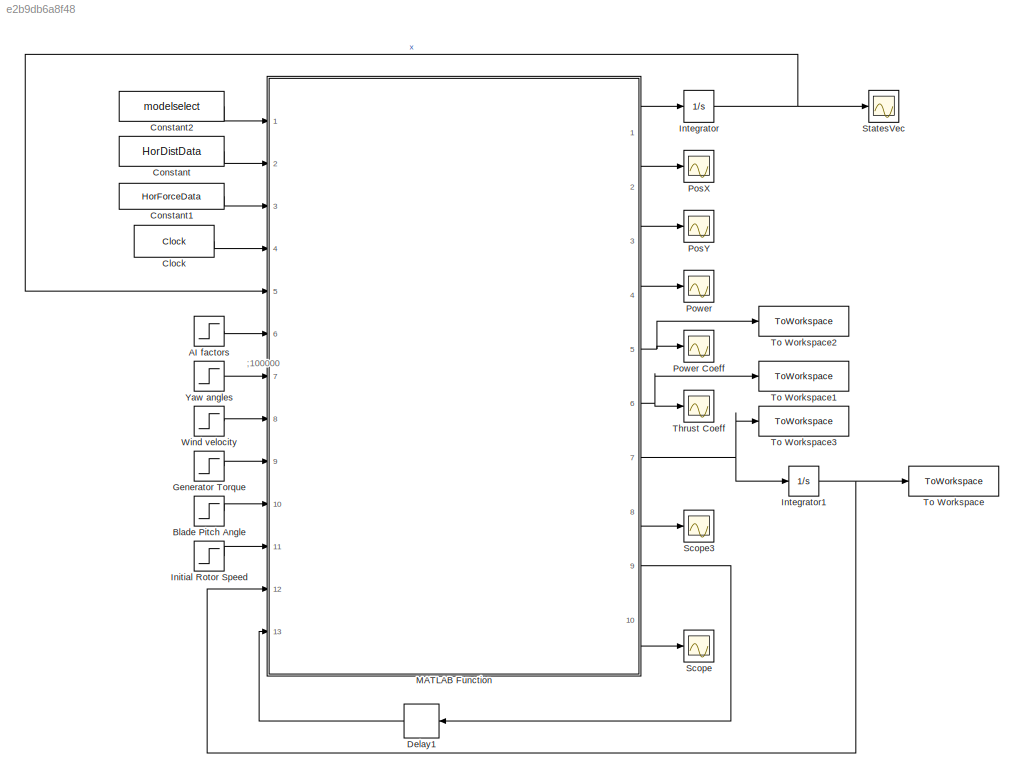
MODEL slx_e2b9db6a8f48
KIND model
CONFIG AbsTol = auto
CONFIG EnableMultiTasking = off
CONFIG FixedStep = SampleTime
CONFIG MaxStep = auto
CONFIG MinStep = auto
CONFIG RelTol = 1e-6
CONFIG SampleTimeConstraint = Unconstrained
CONFIG SolverName = VariableStepAuto
CONFIG StartTime = 0.0
CONFIG StopTime = timeEnd
BLOCK [Step] AI factors
  After = InitAIFactorVec
  Before = InitAIFactorVec
  SampleTime = SampleTime
  Time = 0
BLOCK [Step] Blade Pitch Angle
  After = InitBladePitch
  Before = InitBladePitch
  SampleTime = SampleTime
  Time = 0
BLOCK [Clock] Clock
  DisplayTime = on
BLOCK [Constant] Constant
  Value = HorDistData
  VectorParams1D = off
BLOCK [Constant] Constant1
  Value = HorForceData
  VectorParams1D = off
BLOCK [Constant] Constant2
  SampleTime = SampleTime
  Value = modelselect
BLOCK [Delay] Delay1
  DelayLength = 1
  InitialCondition = 0
  InputPortMap = u0
  Ports = [1, 1]
  SampleTime = SampleTime
BLOCK [Step] Generator Torque
  After = InitGeneTorqueVec
  Before = InitGeneTorqueVec
  SampleTime = SampleTime
  Time = 0
BLOCK [Step] Initial Rotor Speed
  After = InitRotorSpeedVec
  Before = InitRotorSpeedVec
  SampleTime = SampleTime
  Time = 0
BLOCK [Integrator] Integrator
  IgnoreLimit = on
  InitialCondition = InitStateVec
  LowerSaturationLimit = 0
  Ports = [1, 1]
  UpperSaturationLimit = 100000
BLOCK [Integrator] Integrator1
  Ports = [1, 1]
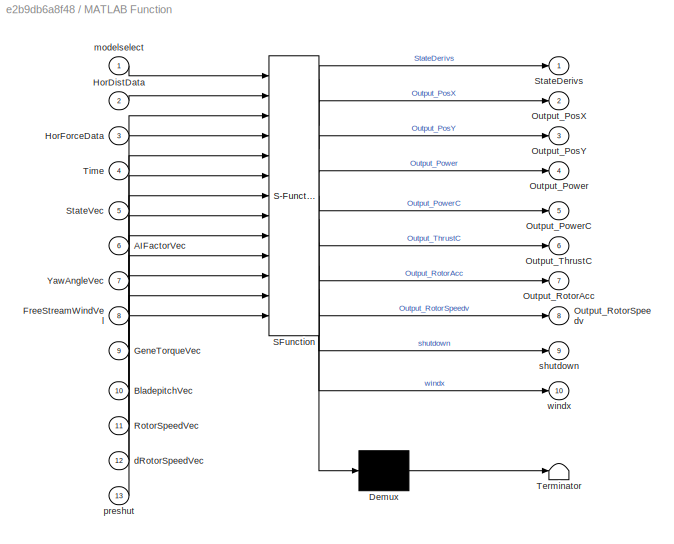
BLOCK [SubSystem] MATLAB Function
  ErrorFcn = Stateflow.Translate.translate
  PermitHierarchicalResolution = ExplicitOnly
  Ports = [13, 10]
  RequestExecContextInheritance = off
  SFBlockType = MATLAB Function
  TreatAsAtomicUnit = on
BLOCK [Demux] MATLAB Function/ Demux 
  Outputs = 1
  Ports = [1, 1]
BLOCK [S-Function] MATLAB Function/ SFunction 
  EnableBusSupport = on
  FunctionName = sf_sfun
  PortCounts = [13 11]
  Ports = [13, 11]
  SFcnIsStateOwnerBlock = off
  SFunctionDeploymentMode = off
  Tag = Stateflow S-Function 2
BLOCK [Terminator] MATLAB Function/ Terminator 
BLOCK [Inport] MATLAB Function/AIFactorVec
  Port = 6
BLOCK [Inport] MATLAB Function/BladepitchVec
  Port = 10
BLOCK [Inport] MATLAB Function/FreeStreamWindVel
  Port = 8
BLOCK [Inport] MATLAB Function/GeneTorqueVec
  Port = 9
BLOCK [Inport] MATLAB Function/HorDistData
  Port = 2
BLOCK [Inport] MATLAB Function/HorForceData
  Port = 3
BLOCK [Outport] MATLAB Function/Output_PosX
  Port = 2
BLOCK [Outport] MATLAB Function/Output_PosY
  Port = 3
BLOCK [Outport] MATLAB Function/Output_Power
  Port = 4
BLOCK [Outport] MATLAB Function/Output_PowerC
  Port = 5
BLOCK [Outport] MATLAB Function/Output_RotorAcc
  Port = 7
BLOCK [Outport] MATLAB Function/Output_RotorSpeedv
  Port = 8
BLOCK [Outport] MATLAB Function/Output_ThrustC
  Port = 6
BLOCK [Inport] MATLAB Function/RotorSpeedVec
  Port = 11
BLOCK [Outport] MATLAB Function/StateDerivs
  VectorParamsAs1DForOutWhenUnconnected = off
BLOCK [Inport] MATLAB Function/StateVec
  Port = 5
BLOCK [Inport] MATLAB Function/Time
  Port = 4
BLOCK [Inport] MATLAB Function/YawAngleVec
  Port = 7
BLOCK [Inport] MATLAB Function/dRotorSpeedVec
  Port = 12
BLOCK [Inport] MATLAB Function/modelselect
BLOCK [Inport] MATLAB Function/preshut
  Port = 13
BLOCK [Outport] MATLAB Function/shutdown
  Port = 9
BLOCK [Outport] MATLAB Function/windx
  Port = 10
BLOCK [Scope] PosX
  Floating = off
  NumInputPorts = 1
  Ports = [1]
  ScopeSpecificationString = Simulink.scopes.TimeScopeBlockCfg('CurrentConfiguration', extmgr.ConfigurationSet(extmgr.Configuration('Core','General UI',true),extmgr.Configuration('Core','Source UI',true),extmgr.Configuration('Sources','WiredSimulink',true,'DataLoggingVariableName','PosX','DataLogging',true,'DataLoggingSaveFormat','StructureWithTime'),extmgr.Configuration('Visuals','Time Domain',true,'SerializedDisplays',{stru...<+1545ch>
BLOCK [Scope] PosY
  Floating = off
  NumInputPorts = 1
  Ports = [1]
  ScopeSpecificationString = Simulink.scopes.TimeScopeBlockCfg('CurrentConfiguration', extmgr.ConfigurationSet(extmgr.Configuration('Core','General UI',true),extmgr.Configuration('Core','Source UI',true),extmgr.Configuration('Sources','WiredSimulink',true,'DataLoggingVariableName','PosY','DataLogging',true,'DataLoggingSaveFormat','StructureWithTime'),extmgr.Configuration('Visuals','Time Domain',true,'SerializedDisplays',{stru...<+1643ch>
BLOCK [Scope] Power
  Floating = off
  NumInputPorts = 1
  Ports = [1]
  ScopeSpecificationString = Simulink.scopes.TimeScopeBlockCfg('CurrentConfiguration', extmgr.ConfigurationSet(extmgr.Configuration('Core','General UI',true),extmgr.Configuration('Core','Source UI',true),extmgr.Configuration('Sources','WiredSimulink',true,'DataLoggingVariableName','Power','DataLogging',true,'DataLoggingSaveFormat','StructureWithTime'),extmgr.Configuration('Visuals','Time Domain',true,'SerializedDisplays',{str...<+1599ch>
BLOCK [Scope] Power Coeff
  Floating = off
  NumInputPorts = 1
  Ports = [1]
  ScopeSpecificationString = Simulink.scopes.TimeScopeBlockCfg('CurrentConfiguration', extmgr.ConfigurationSet(extmgr.Configuration('Core','General UI',true),extmgr.Configuration('Core','Source UI',true),extmgr.Configuration('Sources','WiredSimulink',true,'DataLoggingVariableName','ScopeData1','DataLogging',true,'DataLoggingSaveFormat','StructureWithTime'),extmgr.Configuration('Visuals','Time Domain',true,'SerializedDisplays'...<+1694ch>
BLOCK [Scope] Scope
  Floating = off
  NumInputPorts = 1
  Ports = [1]
  ScopeSpecificationString = Simulink.scopes.TimeScopeBlockCfg('CurrentConfiguration', extmgr.ConfigurationSet(extmgr.Configuration('Core','General UI',true),extmgr.Configuration('Core','Source UI',true),extmgr.Configuration('Sources','WiredSimulink',true,'DataLoggingVariableName','ScopeData1'),extmgr.Configuration('Visuals','Time Domain',true,'SerializedDisplays',{struct('MinYLimReal','-1.25','MaxYLimReal','11.25','YLabelRea...<+1425ch>
BLOCK [Scope] Scope3
  Floating = off
  NumInputPorts = 1
  Ports = [1]
  ScopeSpecificationString = Simulink.scopes.TimeScopeBlockCfg('CurrentConfiguration', extmgr.ConfigurationSet(extmgr.Configuration('Core','General UI',true),extmgr.Configuration('Core','Source UI',true),extmgr.Configuration('Sources','WiredSimulink',true,'DataLoggingVariableName','ScopeData1'),extmgr.Configuration('Visuals','Time Domain',true,'SerializedDisplays',{struct('MinYLimReal','0.84253','MaxYLimReal','1.30691','YLabe...<+1467ch>
BLOCK [Scope] StatesVec
  Floating = off
  NumInputPorts = 1
  Ports = [1]
  ScopeSpecificationString = Simulink.scopes.TimeScopeBlockCfg('CurrentConfiguration', extmgr.ConfigurationSet(extmgr.Configuration('Core','General UI',true),extmgr.Configuration('Core','Source UI',true),extmgr.Configuration('Sources','WiredSimulink',true,'DataLoggingVariableName','StatesVec','DataLogging',true,'DataLoggingSaveFormat','StructureWithTime'),extmgr.Configuration('Visuals','Time Domain',true,'SerializedDisplays',...<+5519ch>
BLOCK [Scope] Thrust Coeff
  Floating = off
  NumInputPorts = 1
  Ports = [1]
  ScopeSpecificationString = Simulink.scopes.TimeScopeBlockCfg('CurrentConfiguration', extmgr.ConfigurationSet(extmgr.Configuration('Core','General UI',true),extmgr.Configuration('Core','Source UI',true),extmgr.Configuration('Sources','WiredSimulink',true,'DataLoggingVariableName','ScopeData1'),extmgr.Configuration('Visuals','Time Domain',true),extmgr.Configuration('Tools','Plot Navigation',true),extmgr.Configuration('Tools',...<+40ch>
BLOCK [ToWorkspace] To Workspace
  FixptAsFi = on
  MaxDataPoints = inf
  Ports = [1]
  SampleTime = -1
  SaveFormat = Timeseries
  VariableName = v_r
BLOCK [ToWorkspace] To Workspace1
  FixptAsFi = on
  MaxDataPoints = inf
  Ports = [1]
  SampleTime = -1
  SaveFormat = Timeseries
  VariableName = Ct
BLOCK [ToWorkspace] To Workspace2
  FixptAsFi = on
  MaxDataPoints = inf
  Ports = [1]
  SampleTime = -1
  SaveFormat = Timeseries
  VariableName = Cp
BLOCK [ToWorkspace] To Workspace3
  FixptAsFi = on
  MaxDataPoints = inf
  Ports = [1]
  SampleTime = -1
  SaveFormat = Timeseries
  VariableName = a_r
BLOCK [Step] Wind velocity
  After = [InitFreeStreamWindVel,0]
  Before = [InitFreeStreamWindVel,0]
  SampleTime = SampleTime
  Time = 0
BLOCK [Step] Yaw angles
  After = InitYawAngleVec
  Before = InitYawAngleVec
  SampleTime = SampleTime
  Time = 0
ANNOTATION (root): ;100000
LINE AI factors:1 -> MATLAB Function:6
LINE Blade Pitch Angle:1 -> MATLAB Function:10
LINE Clock:1 -> MATLAB Function:4
LINE Constant1:1 -> MATLAB Function:3
LINE Constant2:1 -> MATLAB Function:1
LINE Constant:1 -> MATLAB Function:2
LINE Delay1:1 -> MATLAB Function:13
LINE Generator Torque:1 -> MATLAB Function:9
LINE Initial Rotor Speed:1 -> MATLAB Function:11
NET Integrator1:1 -> MATLAB Function:12, To Workspace:1
NET Integrator:1 -> MATLAB Function:5, StatesVec:1
LINE MATLAB Function:1 -> Integrator:1
LINE MATLAB Function:10 -> Scope:1
LINE MATLAB Function:2 -> PosX:1
LINE MATLAB Function:3 -> PosY:1
LINE MATLAB Function:4 -> Power:1
NET MATLAB Function:5 -> Power Coeff:1, To Workspace2:1
NET MATLAB Function:6 -> Thrust Coeff:1, To Workspace1:1
NET MATLAB Function:7 -> Integrator1:1, To Workspace3:1
LINE MATLAB Function:8 -> Scope3:1
LINE MATLAB Function:9 -> Delay1:1
LINE Wind velocity:1 -> MATLAB Function:8
LINE Yaw angles:1 -> MATLAB Function:7
note: NET lines group one-source signal fan-out (src -> all destinations, sorted); 1:1 wires keep LINE
CHART MATLAB Function states=1 transitions=1
  STATE_LABEL 'eML_blk_kernel()'
  STATE_LABEL "SCRIPT:\nfunction [StateDerivs,Output_PosX,Output_PosY,Output_Power,Output_PowerC,Output_ThrustC,Output_RotorAcc,Output_RotorSpeedv,shutdown,windx]    = StateDerivVec(modelselect,HorDistData,HorForceData,Time,StateVec,AIFactorVec,YawAngleVec,FreeStreamWindVel,GeneTorqueVec,BladepitchVec,RotorSpeedVec,dRotorSpeedVec,preshut)\n%% Load structures\n\nPars = load('Parameters_Simu.mat');\n\nSolver = Pars.Solv...<+3608ch>"
CHART  states=0 transitions=0
